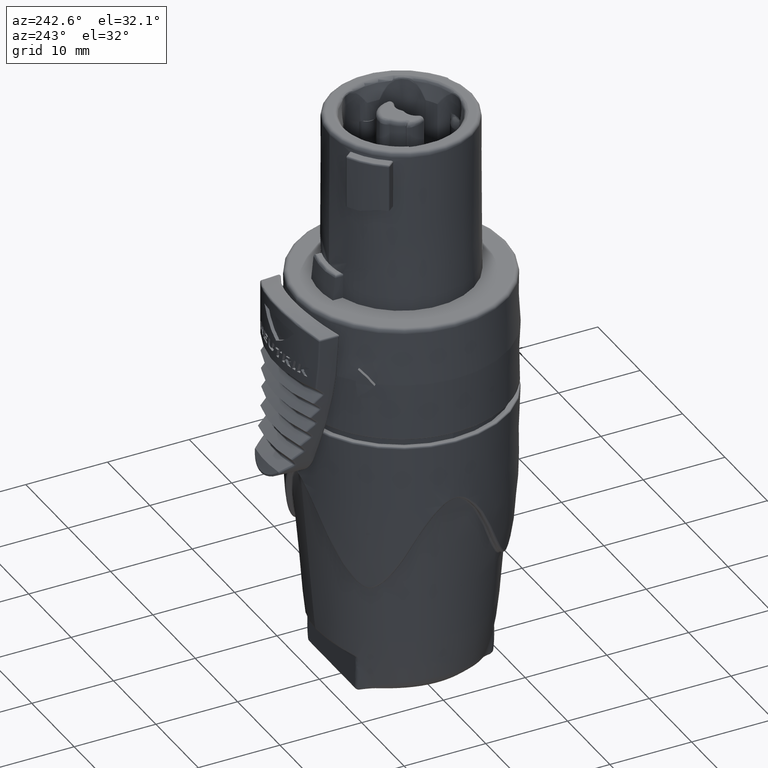
[diagram: clean part render]
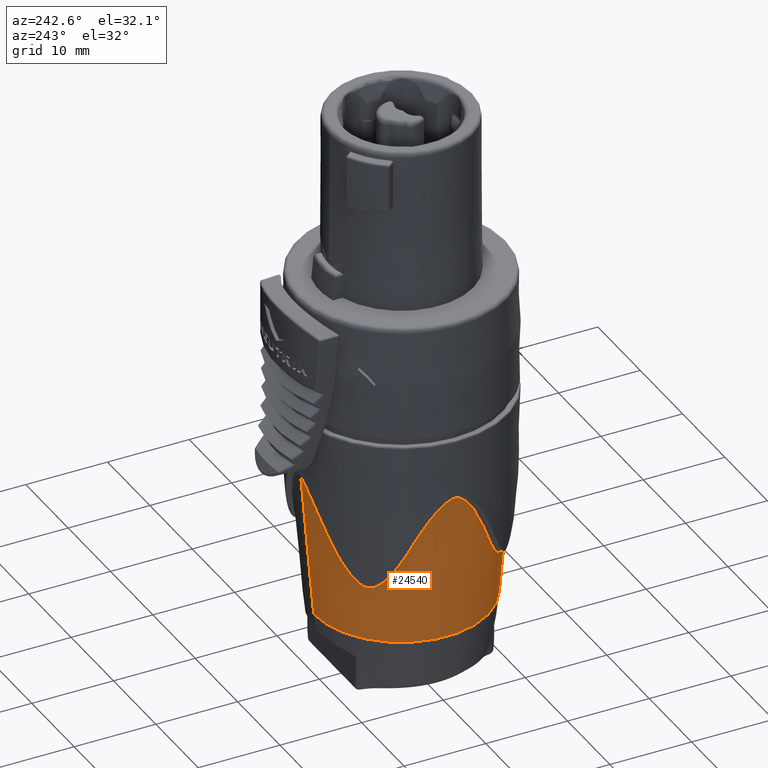
[diagram: same view with one face highlighted and labeled with its STEP entity id]
A machine part, auxiliary view. The second image highlights one B-rep face of the part: STEP entity #24540.
In plain terms, the highlighted conical surface has half-angle 5 deg.
Its self-contained STEP definition (entity closure, byte-faithful):
#5792=CARTESIAN_POINT('',(-6.953521696189E-10,-1.232786187450E1,
-1.268256979784E1));
#5793=CARTESIAN_POINT('',(-6.734028523976E-2,-1.232783220861E1,
-1.268290331387E1));
#5794=CARTESIAN_POINT('',(-2.082300753526E-1,-1.232566600840E1,
-1.269518639102E1));
#5795=CARTESIAN_POINT('',(-4.398135775673E-1,-1.231424652781E1,
-1.275734129757E1));
#5796=CARTESIAN_POINT('',(-6.856617615154E-1,-1.229349304253E1,
-1.286695215686E1));
#5797=CARTESIAN_POINT('',(-9.428148331803E-1,-1.226272240131E1,
-1.302411338250E1));
#5798=CARTESIAN_POINT('',(-1.198538145521E0,-1.222294082527E1,
-1.322130723535E1));
#5799=CARTESIAN_POINT('',(-1.424241493812E0,-1.218054322568E1,
-1.342450661295E1));
#5800=CARTESIAN_POINT('',(-1.606596653672E0,-1.214151362969E1,
-1.360736818260E1));
#5801=CARTESIAN_POINT('',(-1.763534886481E0,-1.210440572363E1,
-1.377949079007E1));
#5802=CARTESIAN_POINT('',(-1.898969079892E0,-1.206972100424E1,
-1.393869185823E1));
#5803=CARTESIAN_POINT('',(-2.016216751852E0,-1.203777808136E1,
-1.408361079903E1));
#5804=CARTESIAN_POINT('',(-2.117498575854E0,-1.200879959364E1,
-1.421343805301E1));
#5805=CARTESIAN_POINT('',(-2.205819968093E0,-1.198248709146E1,
-1.433004453437E1));
#5806=CARTESIAN_POINT('',(-2.282978543652E0,-1.195870050303E1,
-1.443448452855E1));
#5807=CARTESIAN_POINT('',(-2.351047700661E0,-1.193709212835E1,
-1.452865502007E1));
#5808=CARTESIAN_POINT('',(-2.412772521383E0,-1.191698442647E1,
-1.461576618507E1));
#5809=CARTESIAN_POINT('',(-2.470824366073E0,-1.189761283233E1,
-1.469933172081E1));
#5810=CARTESIAN_POINT('',(-2.527893467590E0,-1.187812036482E1,
-1.478316380524E1));
#5811=CARTESIAN_POINT('',(-2.586383815869E0,-1.185767004154E1,
-1.487090389637E1));
#5812=CARTESIAN_POINT('',(-2.648506080649E0,-1.183541885357E1,
-1.496616202668E1));
#5813=CARTESIAN_POINT('',(-2.716526614653E0,-1.181042561811E1,
-1.507289831067E1));
#5814=CARTESIAN_POINT('',(-2.791522703170E0,-1.178209868819E1,
-1.519346588284E1));
#5815=CARTESIAN_POINT('',(-2.870541930547E0,-1.175139157636E1,
-1.532353396988E1));
#5816=CARTESIAN_POINT('',(-2.953973338313E0,-1.171806165747E1,
-1.546379437395E1));
#5817=CARTESIAN_POINT('',(-3.045503256160E0,-1.168042878205E1,
-1.562087732778E1));
#5818=CARTESIAN_POINT('',(-3.142169125930E0,-1.163945255606E1,
-1.579033121681E1));
#5819=CARTESIAN_POINT('',(-3.240726663234E0,-1.159636973338E1,
-1.596684381241E1));
#5820=CARTESIAN_POINT('',(-3.339737717818E0,-1.155172550755E1,
-1.614819605791E1));
#5821=CARTESIAN_POINT('',(-3.438677686517E0,-1.150573462890E1,
-1.633377946412E1));
#5822=CARTESIAN_POINT('',(-3.547200271570E0,-1.145360645856E1,
-1.654316303748E1));
#5823=CARTESIAN_POINT('',(-3.663122823173E0,-1.139584540599E1,
-1.677433616981E1));
#5824=CARTESIAN_POINT('',(-3.785264860841E0,-1.133266847408E1,
-1.702619327081E1));
#5825=CARTESIAN_POINT('',(-3.916459185762E0,-1.126221534070E1,
-1.730515009969E1));
#5826=CARTESIAN_POINT('',(-4.055896959403E0,-1.118439460965E1,
-1.761039495979E1));
#5827=CARTESIAN_POINT('',(-4.203328611415E0,-1.109883329873E1,
-1.794253122960E1));
#5828=CARTESIAN_POINT('',(-4.310956484597E0,-1.103372309536E1,
-1.819243456068E1));
#5829=CARTESIAN_POINT('',(-4.366519838917E0,-1.099931029714E1,
-1.832369047051E1));
#5831=DIRECTION('',(-3.707989729365E-11,-8.715572361980E-2,9.961946997652E-1));
#5832=VECTOR('',#5831,1.875277200857E1);
#5833=CARTESIAN_POINT('',(0.E0,-1.069345046021E1,-3.136398187868E1));
#5834=LINE('',#5833,#5832);
#5835=CARTESIAN_POINT('',(0.E0,0.E0,-3.136398187868E1));
#5836=DIRECTION('',(0.E0,0.E0,1.E0));
#5837=DIRECTION('',(0.E0,1.E0,0.E0));
#5838=AXIS2_PLACEMENT_3D('',#5835,#5836,#5837);
#5840=DIRECTION('',(3.744496613579E-11,8.715572361926E-2,9.961946997653E-1));
#5841=VECTOR('',#5840,1.875277196E1);
#5842=CARTESIAN_POINT('',(0.E0,1.069345046021E1,-3.136398187868E1));
#5843=LINE('',#5842,#5841);
#5844=CARTESIAN_POINT('',(-4.365079476253E0,1.100020621900E1,
-1.832024574977E1));
#5845=CARTESIAN_POINT('',(-4.310426719291E0,1.103404404553E1,
-1.819115576040E1));
#5846=CARTESIAN_POINT('',(-4.201657699754E0,1.109993320631E1,
-1.793832865273E1));
#5847=CARTESIAN_POINT('',(-4.035566039179E0,1.119610245984E1,
-1.756478338742E1));
#5848=CARTESIAN_POINT('',(-3.880730295710E0,1.128176815340E1,
-1.722805506423E1));
#5849=CARTESIAN_POINT('',(-3.740482992624E0,1.135616684782E1,
-1.693276039880E1));
#5850=CARTESIAN_POINT('',(-3.611843667970E0,1.142171022035E1,
-1.667098616509E1));
#5851=CARTESIAN_POINT('',(-3.491438739117E0,1.148065640622E1,
-1.643460278148E1));
#5852=CARTESIAN_POINT('',(-3.384442629886E0,1.153115290428E1,
-1.623123416684E1));
#5853=CARTESIAN_POINT('',(-3.281397034061E0,1.157825497429E1,
-1.604046914415E1));
#5854=CARTESIAN_POINT('',(-3.171848989953E0,1.162671043422E1,
-1.584261897607E1));
#5855=CARTESIAN_POINT('',(-3.057381576922E0,1.167557245719E1,
-1.564105500030E1));
#5856=CARTESIAN_POINT('',(-2.944871501186E0,1.172182539529E1,
-1.544809805935E1));
#5857=CARTESIAN_POINT('',(-2.847298777093E0,1.176054739826E1,
-1.528496999052E1));
#5858=CARTESIAN_POINT('',(-2.758205936039E0,1.179479874305E1,
-1.513965924096E1));
#5859=CARTESIAN_POINT('',(-2.676337940814E0,1.182528141483E1,
-1.500967708596E1));
#5860=CARTESIAN_POINT('',(-2.603253317955E0,1.185168994982E1,
-1.489666253946E1));
#5861=CARTESIAN_POINT('',(-2.536095182129E0,1.187529693533E1,
-1.479534723267E1));
#5862=CARTESIAN_POINT('',(-2.471755464936E0,1.189732396728E1,
-1.470054167888E1));
#5863=CARTESIAN_POINT('',(-2.406958332650E0,1.191893810117E1,
-1.460720045324E1));
#5864=CARTESIAN_POINT('',(-2.337504455779E0,1.194148890485E1,
-1.450936626700E1));
#5865=CARTESIAN_POINT('',(-2.259060502962E0,1.196622086691E1,
-1.440136158123E1));
#5866=CARTESIAN_POINT('',(-2.166440063764E0,1.199442149580E1,
-1.427713150642E1));
#5867=CARTESIAN_POINT('',(-2.058941093407E0,1.202578678969E1,
-1.413743282873E1));
#5868=CARTESIAN_POINT('',(-1.936384019484E0,1.205977541238E1,
-1.398406000091E1));
#5869=CARTESIAN_POINT('',(-1.795284628630E0,1.209653753151E1,
-1.381596547299E1));
#5870=CARTESIAN_POINT('',(-1.633639531661E0,1.213537231558E1,
-1.363619189712E1));
#5871=CARTESIAN_POINT('',(-1.449528435955E0,1.217546670710E1,
-1.344851647425E1));
#5872=CARTESIAN_POINT('',(-1.222912597824E0,1.221867624180E1,
-1.324176454336E1));
#5873=CARTESIAN_POINT('',(-9.865336188127E-1,1.225628644841E1,
-1.305612845951E1));
#5874=CARTESIAN_POINT('',(-7.598461468879E-1,1.228515661938E1,
-1.290999088399E1));
#5875=CARTESIAN_POINT('',(-5.449072522192E-1,1.230599924870E1,
-1.280137208157E1));
#5876=CARTESIAN_POINT('',(-3.446882743997E-1,1.231949507894E1,
-1.272878094546E1));
#5877=CARTESIAN_POINT('',(-1.620761113522E-1,1.232656837233E1,
-1.268984166396E1));
#5878=CARTESIAN_POINT('',(-5.205499334891E-2,1.232786141769E1,
-1.268257469655E1));
#5879=CARTESIAN_POINT('',(7.021982205642E-10,1.232786187025E1,
-1.268256984623E1));
#5881=CARTESIAN_POINT('',(-8.005227812063E0,8.006156044604E0,
-2.418258336250E1));
#5882=CARTESIAN_POINT('',(-7.962584759800E0,8.048829355493E0,
-2.418231543908E1));
#5883=CARTESIAN_POINT('',(-7.874458361040E0,8.136626247265E0,
-2.417367336039E1));
#5884=CARTESIAN_POINT('',(-7.731502536795E0,8.277776012493E0,
-2.413136668072E1));
#5885=CARTESIAN_POINT('',(-7.578966747257E0,8.426740003942E0,
-2.405493416254E1));
#5886=CARTESIAN_POINT('',(-7.419066293656E0,8.580918673727E0,
-2.394250945674E1));
#5887=CARTESIAN_POINT('',(-7.253744016068E0,8.737986054994E0,
-2.379472305913E1));
#5888=CARTESIAN_POINT('',(-7.081295852270E0,8.899188013460E0,
-2.360868724386E1));
#5889=CARTESIAN_POINT('',(-6.907560559911E0,9.058351598930E0,
-2.339265527141E1));
#5890=CARTESIAN_POINT('',(-6.754567478726E0,9.195650565833E0,
-2.318143495238E1));
#5891=CARTESIAN_POINT('',(-6.627985659628E0,9.307517393501E0,
-2.299156770139E1));
#5892=CARTESIAN_POINT('',(-6.518349726013E0,9.403151550539E0,
-2.281664421749E1));
#5893=CARTESIAN_POINT('',(-6.422741902327E0,9.485461793367E0,
-2.265739755354E1));
#5894=CARTESIAN_POINT('',(-6.339581872341E0,9.556147851764E0,
-2.251490617131E1));
#5895=CARTESIAN_POINT('',(-6.266534765516E0,9.617522327741E0,
-2.238703712109E1));
#5896=CARTESIAN_POINT('',(-6.201649502829E0,9.671477433293E0,
-2.227144219820E1));
#5897=CARTESIAN_POINT('',(-6.143008284160E0,9.719794598600E0,
-2.216534385252E1));
#5898=CARTESIAN_POINT('',(-6.088491960700E0,9.764347414526E0,
-2.206525600383E1));
#5899=CARTESIAN_POINT('',(-6.035842272698E0,9.807065030240E0,
-2.196707683177E1));
#5900=CARTESIAN_POINT('',(-5.982816204445E0,9.849800042334E0,
-2.186654023538E1));
#5901=CARTESIAN_POINT('',(-5.927187618747E0,9.894331783994E0,
-2.175921810656E1));
#5902=CARTESIAN_POINT('',(-5.866869097634E0,9.942272519659E0,
-2.164074816365E1));
#5903=CARTESIAN_POINT('',(-5.799896486497E0,9.995059342929E0,
-2.150681718496E1));
#5904=CARTESIAN_POINT('',(-5.728468070530E0,1.005080426723E1,
-2.136161091243E1));
#5905=CARTESIAN_POINT('',(-5.652823826248E0,1.010918111134E1,
-2.120585672248E1));
#5906=CARTESIAN_POINT('',(-5.569306614561E0,1.017280000312E1,
-2.103204037503E1));
#5907=CARTESIAN_POINT('',(-5.480466567244E0,1.023948459499E1,
-2.084530398167E1));
#5908=CARTESIAN_POINT('',(-5.388552408091E0,1.030742188222E1,
-2.065021124185E1));
#5909=CARTESIAN_POINT('',(-5.295238087977E0,1.037534145836E1,
-2.045001149798E1));
#5910=CARTESIAN_POINT('',(-5.197725533745E0,1.044529758379E1,
-2.023798499290E1));
#5911=CARTESIAN_POINT('',(-5.088618587040E0,1.052239892618E1,
-1.999650808361E1));
#5912=CARTESIAN_POINT('',(-4.972185606236E0,1.060335061471E1,
-1.973383118225E1));
#5913=CARTESIAN_POINT('',(-4.841783895248E0,1.069232353550E1,
-1.943493257787E1));
#5914=CARTESIAN_POINT('',(-4.697484028561E0,1.078848206481E1,
-1.910051304635E1));
#5915=CARTESIAN_POINT('',(-4.541647318477E0,1.088962294136E1,
-1.873632754320E1));
#5916=CARTESIAN_POINT('',(-4.425700621553E0,1.096267312580E1,
-1.846343334584E1));
#5917=CARTESIAN_POINT('',(-4.365079476253E0,1.100020621900E1,
-1.832024574977E1));
#5919=CARTESIAN_POINT('',(-1.099930682181E1,4.366528675866E0,
-1.832369014053E1));
#5920=CARTESIAN_POINT('',(-1.095780736534E1,4.433534103242E0,
-1.848197610056E1));
#5921=CARTESIAN_POINT('',(-1.087701968140E1,4.561527294791E0,
-1.878315491285E1));
#5922=CARTESIAN_POINT('',(-1.076200094556E1,4.737751233751E0,
-1.919433288581E1));
#5923=CARTESIAN_POINT('',(-1.065868283898E1,4.891516989807E0,
-1.954944755517E1));
#5924=CARTESIAN_POINT('',(-1.056442906757E1,5.028503657521E0,
-1.986153604702E1));
#5925=CARTESIAN_POINT('',(-1.047856797376E1,5.150903518762E0,
-2.013500952048E1));
#5926=CARTESIAN_POINT('',(-1.040044730026E1,5.260416878912E0,
-2.037487202147E1));
#5927=CARTESIAN_POINT('',(-1.032886670571E1,5.359231245582E0,
-2.058783659211E1));
#5928=CARTESIAN_POINT('',(-1.025490286301E1,5.459771267644E0,
-2.080192186703E1));
#5929=CARTESIAN_POINT('',(-1.017169760037E1,5.570916318405E0,
-2.103581356864E1));
#5930=CARTESIAN_POINT('',(-1.007661168756E1,5.695468857927E0,
-2.129442411515E1));
#5931=CARTESIAN_POINT('',(-9.969283929894E0,5.833045083445E0,
-2.157429067634E1));
#5932=CARTESIAN_POINT('',(-9.865015122356E0,5.964133942547E0,
-2.183178836365E1));
#5933=CARTESIAN_POINT('',(-9.770755113423E0,6.080808562732E0,
-2.205205641147E1));
#5934=CARTESIAN_POINT('',(-9.684579157302E0,6.185910296335E0,
-2.224396901642E1));
#5935=CARTESIAN_POINT('',(-9.605963595509E0,6.280381922678E0,
-2.241210416612E1));
#5936=CARTESIAN_POINT('',(-9.534276364550E0,6.365380033890E0,
-2.255973304999E1));
#5937=CARTESIAN_POINT('',(-9.470706301374E0,6.439887674584E0,
-2.268612373375E1));
#5938=CARTESIAN_POINT('',(-9.409592993096E0,6.510815909885E0,
-2.280360520194E1));
#5939=CARTESIAN_POINT('',(-9.345307057589E0,6.584742884515E0,
-2.292253794423E1));
#5940=CARTESIAN_POINT('',(-9.274750821804E0,6.665142492308E0,
-2.304720783994E1));
#5941=CARTESIAN_POINT('',(-9.194209041914E0,6.756034606161E0,
-2.318195334767E1));
#5942=CARTESIAN_POINT('',(-9.098244099024E0,6.863156145927E0,
-2.333175770663E1));
#5943=CARTESIAN_POINT('',(-8.985173037372E0,6.987621658349E0,
-2.349396545619E1));
#5944=CARTESIAN_POINT('',(-8.854825390067E0,7.128895288427E0,
-2.366229260651E1));
#5945=CARTESIAN_POINT('',(-8.699972514883E0,7.294046293395E0,
-2.383393376170E1));
#5946=CARTESIAN_POINT('',(-8.514912579221E0,7.488209658047E0,
-2.399902034139E1));
#5947=CARTESIAN_POINT('',(-8.276721236384E0,7.733020988081E0,
-2.414277386753E1));
#5948=CARTESIAN_POINT('',(-8.099772389301E0,7.911714753078E0,
-2.418248694357E1));
#5949=CARTESIAN_POINT('',(-8.005227812063E0,8.006156044604E0,
-2.418258336250E1));
#5951=CARTESIAN_POINT('',(-1.232786095941E1,-7.055305150844E-4,
-1.268257879259E1));
#5952=CARTESIAN_POINT('',(-1.232783867130E1,6.729881937041E-2,
-1.268286819693E1));
#5953=CARTESIAN_POINT('',(-1.232563805759E1,2.106352540754E-1,
-1.269534798543E1));
#5954=CARTESIAN_POINT('',(-1.231379661196E1,4.476488209718E-1,
-1.275978008450E1));
#5955=CARTESIAN_POINT('',(-1.229196367131E1,7.013156237582E-1,
-1.287492659935E1));
#5956=CARTESIAN_POINT('',(-1.225953894219E1,9.666054308223E-1,
-1.304020428313E1));
#5957=CARTESIAN_POINT('',(-1.221653117012E1,1.236328087004E0,
-1.325263544233E1));
#5958=CARTESIAN_POINT('',(-1.216956838302E1,1.479030088339E0,
-1.347642649629E1));
#5959=CARTESIAN_POINT('',(-1.212348322227E1,1.685734571613E0,
-1.369130004242E1));
#5960=CARTESIAN_POINT('',(-1.208008145525E1,1.860189573930E0,
-1.389146320910E1));
#5961=CARTESIAN_POINT('',(-1.203929962679E1,2.011514398583E0,
-1.407697584233E1));
#5962=CARTESIAN_POINT('',(-1.199774840063E1,2.155745867621E0,
-1.426282135666E1));
#5963=CARTESIAN_POINT('',(-1.195968436547E1,2.280345094590E0,
-1.443035356038E1));
#5964=CARTESIAN_POINT('',(-1.192600735096E1,2.385704856697E0,
-1.457685142538E1));
#5965=CARTESIAN_POINT('',(-1.189230598366E1,2.486980157739E0,
-1.472225124842E1));
#5966=CARTESIAN_POINT('',(-1.185656119272E1,2.590032709379E0,
-1.487571397737E1));
#5967=CARTESIAN_POINT('',(-1.181674826804E1,2.700020464455E0,
-1.504600567366E1));
#5968=CARTESIAN_POINT('',(-1.177184940699E1,2.818679788381E0,
-1.523711716788E1));
#5969=CARTESIAN_POINT('',(-1.172166431557E1,2.945607123862E0,
-1.544893633250E1));
#5970=CARTESIAN_POINT('',(-1.166697321005E1,3.077974931925E0,
-1.567690405459E1));
#5971=CARTESIAN_POINT('',(-1.161446465968E1,3.199864892901E0,
-1.589297465011E1));
#5972=CARTESIAN_POINT('',(-1.156693613988E1,3.306387488970E0,
-1.608657051329E1));
#5973=CARTESIAN_POINT('',(-1.152017788677E1,3.407958884629E0,
-1.627559938046E1));
#5974=CARTESIAN_POINT('',(-1.146923059800E1,3.515110421E0,-1.648048471398E1));
#5975=CARTESIAN_POINT('',(-1.141085451127E1,3.633472250906E0,
-1.671433937800E1));
#5976=CARTESIAN_POINT('',(-1.134673799041E1,3.758529077243E0,
-1.697022968633E1));
#5977=CARTESIAN_POINT('',(-1.127408326104E1,3.894802395301E0,
-1.725836505880E1));
#5978=CARTESIAN_POINT('',(-1.119320509799E1,4.040478682441E0,
-1.757603482775E1));
#5979=CARTESIAN_POINT('',(-1.110393598654E1,4.194819554159E0,
-1.792288344498E1));
#5980=CARTESIAN_POINT('',(-1.103554443332E1,4.308019088607E0,
-1.818547418861E1));
#5981=CARTESIAN_POINT('',(-1.099930682181E1,4.366528675866E0,
-1.832369014053E1));
#5983=CARTESIAN_POINT('',(-1.100020265874E1,-4.365088453885E0,
-1.832024574999E1));
#5984=CARTESIAN_POINT('',(-1.103882745023E1,-4.302704286929E0,
-1.817289362159E1));
#5985=CARTESIAN_POINT('',(-1.111191253027E1,-4.181560091944E0,
-1.789214444355E1));
#5986=CARTESIAN_POINT('',(-1.121046019414E1,-4.010130957194E0,
-1.750861782595E1));
#5987=CARTESIAN_POINT('',(-1.129534943545E1,-3.855585502175E0,
-1.717434174616E1));
#5988=CARTESIAN_POINT('',(-1.136936204602E1,-3.715020664440E0,
-1.688015130529E1));
#5989=CARTESIAN_POINT('',(-1.143358126299E1,-3.587963830765E0,
-1.662344097245E1));
#5990=CARTESIAN_POINT('',(-1.149059188927E1,-3.470665649570E0,
-1.639464763304E1));
#5991=CARTESIAN_POINT('',(-1.153958304198E1,-3.366226548330E0,
-1.619716805126E1));
#5992=CARTESIAN_POINT('',(-1.158585146661E1,-3.264433816712E0,
-1.600954153554E1));
#5993=CARTESIAN_POINT('',(-1.163314417392E1,-3.157018250388E0,
-1.581619232642E1));
#5994=CARTESIAN_POINT('',(-1.168479336965E1,-3.035484957998E0,
-1.560285307552E1));
#5995=CARTESIAN_POINT('',(-1.174098744336E1,-2.897638056113E0,
-1.536782043114E1));
#5996=CARTESIAN_POINT('',(-1.179948006516E1,-2.746810257211E0,
-1.511996969288E1));
#5997=CARTESIAN_POINT('',(-1.185427061356E1,-2.597078056445E0,
-1.488574805801E1));
#5998=CARTESIAN_POINT('',(-1.190128016560E1,-2.460863209839E0,
-1.468363937716E1));
#5999=CARTESIAN_POINT('',(-1.194107086223E1,-2.339375353198E0,
-1.451135510362E1));
#6000=CARTESIAN_POINT('',(-1.197748494141E1,-2.222906564542E0,
-1.435202122824E1));
#6001=CARTESIAN_POINT('',(-1.201489730360E1,-2.097245888245E0,
-1.418625934785E1));
#6002=CARTESIAN_POINT('',(-1.205457879598E1,-1.956034006574E0,
-1.400776231179E1));
#6003=CARTESIAN_POINT('',(-1.209593663780E1,-1.798115910266E0,
-1.381879512127E1));
#6004=CARTESIAN_POINT('',(-1.213947307899E1,-1.616691077327E0,
-1.361722978318E1));
#6005=CARTESIAN_POINT('',(-1.218620250861E1,-1.397465357918E0,
-1.339784501840E1));
#6006=CARTESIAN_POINT('',(-1.223026934556E1,-1.154963844859E0,
-1.318513512516E1));
#6007=CARTESIAN_POINT('',(-1.226424138366E1,-9.283139352294E-1,
-1.301611434984E1));
#6008=CARTESIAN_POINT('',(-1.228956891974E1,-7.181727202461E-1,
-1.288721271567E1));
#6009=CARTESIAN_POINT('',(-1.230815184327E1,-5.167575778159E-1,
-1.278988382512E1));
#6010=CARTESIAN_POINT('',(-1.232027883701E1,-3.278911142882E-1,
-1.272447925179E1));
#6011=CARTESIAN_POINT('',(-1.232668095655E1,-1.544764737486E-1,
-1.268920555012E1));
#6012=CARTESIAN_POINT('',(-1.232785492105E1,-5.026333561931E-2,
-1.268261803113E1));
#6013=CARTESIAN_POINT('',(-1.232786095941E1,-7.055305150844E-4,
-1.268257879259E1));
#6015=CARTESIAN_POINT('',(-8.006210842997E0,-8.005167105738E0,
-2.418258434176E1));
#6016=CARTESIAN_POINT('',(-8.102904865939E0,-7.908642707977E0,
-2.418179865403E1));
#6017=CARTESIAN_POINT('',(-8.293642342309E0,-7.716202762382E0,
-2.414248646039E1));
#6018=CARTESIAN_POINT('',(-8.603534279176E0,-7.396387313591E0,
-2.393614454867E1));
#6019=CARTESIAN_POINT('',(-8.845648234566E0,-7.139253398218E0,
-2.367767183675E1));
#6020=CARTESIAN_POINT('',(-9.033457388651E0,-6.935137624406E0,
-2.342943480326E1));
#6021=CARTESIAN_POINT('',(-9.190598240118E0,-6.760363126022E0,
-2.319076139414E1));
#6022=CARTESIAN_POINT('',(-9.322314163489E0,-6.611223007473E0,
-2.296617773166E1));
#6023=CARTESIAN_POINT('',(-9.432993830491E0,-6.483937757615E0,
-2.276044386028E1));
#6024=CARTESIAN_POINT('',(-9.530747550850E0,-6.369715370823E0,
-2.256733951619E1));
#6025=CARTESIAN_POINT('',(-9.618007432816E0,-6.266073101697E0,
-2.238655812322E1));
#6026=CARTESIAN_POINT('',(-9.691761811113E0,-6.177170901657E0,
-2.222756148614E1));
#6027=CARTESIAN_POINT('',(-9.753653633994E0,-6.101670246947E0,
-2.208977484707E1));
#6028=CARTESIAN_POINT('',(-9.811579094715E0,-6.030309196650E0,
-2.195688691053E1));
#6029=CARTESIAN_POINT('',(-9.870063247854E0,-5.957605583990E0,
-2.181838812040E1));
#6030=CARTESIAN_POINT('',(-9.932768669329E0,-5.878930034004E0,
-2.166487833174E1));
#6031=CARTESIAN_POINT('',(-1.000074471331E1,-5.792713977549E0,
-2.149251691840E1));
#6032=CARTESIAN_POINT('',(-1.007036223467E1,-5.703307645342E0,
-2.131014816871E1));
#6033=CARTESIAN_POINT('',(-1.014610173582E1,-5.604611656582E0,
-2.110587976035E1));
#6034=CARTESIAN_POINT('',(-1.022731229854E1,-5.496878220701E0,
-2.088003817844E1));
#6035=CARTESIAN_POINT('',(-1.030306355740E1,-5.394526374989E0,
-2.066298299877E1));
#6036=CARTESIAN_POINT('',(-1.037319299057E1,-5.298213558392E0,
-2.045641519083E1));
#6037=CARTESIAN_POINT('',(-1.044229673855E1,-5.201939274328E0,
-2.024719793794E1));
#6038=CARTESIAN_POINT('',(-1.051999111610E1,-5.092061236677E0,
-2.000419710823E1));
#6039=CARTESIAN_POINT('',(-1.060130136173E1,-4.975164616809E0,
-1.974059653381E1));
#6040=CARTESIAN_POINT('',(-1.069066840475E1,-4.844245622219E0,
-1.944059712067E1));
#6041=CARTESIAN_POINT('',(-1.078723882230E1,-4.699380587583E0,
-1.910491004175E1));
#6042=CARTESIAN_POINT('',(-1.088865935156E1,-4.543165064390E0,
-1.873987168342E1));
#6043=CARTESIAN_POINT('',(-1.096231573057E1,-4.426280977908E0,
-1.846478303718E1));
#6044=CARTESIAN_POINT('',(-1.100020265874E1,-4.365088453885E0,
-1.832024574999E1));
#6046=CARTESIAN_POINT('',(-4.366519838917E0,-1.099931029714E1,
-1.832369047051E1));
#6047=CARTESIAN_POINT('',(-4.432009541245E0,-1.095874967460E1,
-1.847839571060E1));
#6048=CARTESIAN_POINT('',(-4.557256773032E0,-1.087973086982E1,
-1.877314001493E1));
#6049=CARTESIAN_POINT('',(-4.730208277289E0,-1.076697266602E1,
-1.917680672254E1));
#6050=CARTESIAN_POINT('',(-4.881565590441E0,-1.066543110633E1,
-1.952657936380E1));
#6051=CARTESIAN_POINT('',(-5.016716957150E0,-1.057260111438E1,
-1.983488300327E1));
#6052=CARTESIAN_POINT('',(-5.137537672712E0,-1.048800654418E1,
-2.010540744871E1));
#6053=CARTESIAN_POINT('',(-5.246321541731E0,-1.041055791730E1,
-2.034422389631E1));
#6054=CARTESIAN_POINT('',(-5.342835899549E0,-1.034081287361E1,
-2.055270175322E1));
#6055=CARTESIAN_POINT('',(-5.443070560566E0,-1.026726740978E1,
-2.076653731674E1));
#6056=CARTESIAN_POINT('',(-5.546812808887E0,-1.018982886840E1,
-2.098527822125E1));
#6057=CARTESIAN_POINT('',(-5.649805714506E0,-1.011155519278E1,
-2.119978948219E1));
#6058=CARTESIAN_POINT('',(-5.738896330564E0,-1.004275097684E1,
-2.138289406361E1));
#6059=CARTESIAN_POINT('',(-5.818963434505E0,-9.980131554444E0,
-2.154500941125E1));
#6060=CARTESIAN_POINT('',(-5.892162050542E0,-9.922261888468E0,
-2.169049365860E1));
#6061=CARTESIAN_POINT('',(-5.957274958041E0,-9.870316974863E0,
-2.181738506953E1));
#6062=CARTESIAN_POINT('',(-6.017275200646E0,-9.822075041325E0,
-2.193209825552E1));
#6063=CARTESIAN_POINT('',(-6.074995550919E0,-9.775319887547E0,
-2.204044177592E1));
#6064=CARTESIAN_POINT('',(-6.133551315792E0,-9.727526162362E0,
-2.214842881257E1));
#6065=CARTESIAN_POINT('',(-6.195671158018E0,-9.676393295386E0,
-2.226113042369E1));
#6066=CARTESIAN_POINT('',(-6.265459976927E0,-9.618396088204E0,
-2.238562058390E1));
#6067=CARTESIAN_POINT('',(-6.342622150470E0,-9.553538680782E0,
-2.252049219955E1));
#6068=CARTESIAN_POINT('',(-6.415888226039E0,-9.491245132663E0,
-2.264570918377E1));
#6069=CARTESIAN_POINT('',(-6.484825635355E0,-9.432044845479E0,
-2.276088126575E1));
#6070=CARTESIAN_POINT('',(-6.553686692617E0,-9.372371632266E0,
-2.287299297314E1));
#6071=CARTESIAN_POINT('',(-6.626106758309E0,-9.309074529523E0,
-2.298721589152E1));
#6072=CARTESIAN_POINT('',(-6.705796384988E0,-9.238809265216E0,
-2.310819180293E1));
#6073=CARTESIAN_POINT('',(-6.797547075232E0,-9.157138196783E0,
-2.324100781317E1));
#6074=CARTESIAN_POINT('',(-6.905562434356E0,-9.059881719376E0,
-2.338825719854E1));
#6075=CARTESIAN_POINT('',(-7.027822544937E0,-8.948257428916E0,
-2.354332343077E1));
#6076=CARTESIAN_POINT('',(-7.167140574517E0,-8.819146455664E0,
-2.370424388391E1));
#6077=CARTESIAN_POINT('',(-7.329529515905E0,-8.666347631366E0,
-2.386647113118E1));
#6078=CARTESIAN_POINT('',(-7.507515603793E0,-8.496041746545E0,
-2.400964974518E1));
#6079=CARTESIAN_POINT('',(-7.685978540471E0,-8.322501870578E0,
-2.411380114680E1));
#6080=CARTESIAN_POINT('',(-7.855876694683E0,-8.155070405320E0,
-2.417199180311E1));
#6081=CARTESIAN_POINT('',(-7.957723002289E0,-8.053658759861E0,
-2.418262193845E1));
#6082=CARTESIAN_POINT('',(-8.006210842997E0,-8.005167105738E0,
-2.418258434176E1));
#6264=CARTESIAN_POINT('',(-6.953521696189E-10,-1.232786187450E1,
-1.268256979784E1));
#11292=CARTESIAN_POINT('',(0.E0,1.069345046021E1,-3.136398187868E1));
#11293=CARTESIAN_POINT('',(0.E0,-1.069345046021E1,-3.136398187868E1));
#11294=VERTEX_POINT('',#11292);
#11295=VERTEX_POINT('',#11293);
#11399=VERTEX_POINT('',#6264);
#11401=VERTEX_POINT('',#5829);
#11403=VERTEX_POINT('',#6082);
#11405=VERTEX_POINT('',#6044);
#11407=VERTEX_POINT('',#6013);
#11409=VERTEX_POINT('',#5981);
#11411=VERTEX_POINT('',#5949);
#11413=VERTEX_POINT('',#5917);
#11415=VERTEX_POINT('',#5879);
#24517=CARTESIAN_POINT('',(0.E0,0.E0,-2.202327536521E1));
#24518=DIRECTION('',(0.E0,0.E0,1.E0));
#24519=DIRECTION('',(0.E0,1.E0,0.E0));
#24520=AXIS2_PLACEMENT_3D('',#24517,#24518,#24519);
#24521=CONICAL_SURFACE('',#24520,1.151065638946E1,5.E0);
#24522=ORIENTED_EDGE('',*,*,#21234,.F.);
#24524=ORIENTED_EDGE('',*,*,#24523,.F.);
#24526=ORIENTED_EDGE('',*,*,#24525,.F.);
#24528=ORIENTED_EDGE('',*,*,#24527,.T.);
#24529=ORIENTED_EDGE('',*,*,#23149,.F.);
#24530=ORIENTED_EDGE('',*,*,#23307,.F.);
#24531=ORIENTED_EDGE('',*,*,#23442,.F.);
#24533=ORIENTED_EDGE('',*,*,#24532,.F.);
#24535=ORIENTED_EDGE('',*,*,#24534,.F.);
#24536=ORIENTED_EDGE('',*,*,#24510,.F.);
#24537=ORIENTED_EDGE('',*,*,#21071,.F.);
#24538=EDGE_LOOP('',(#24522,#24524,#24526,#24528,#24529,#24530,#24531,#24533,
#24535,#24536,#24537));
#24539=FACE_OUTER_BOUND('',#24538,.F.);
#24540=ADVANCED_FACE('',(#24539),#24521,.T.);
#5830=B_SPLINE_CURVE_WITH_KNOTS('',3,(#5792,#5793,#5794,#5795,#5796,#5797,#5798,
#5799,#5800,#5801,#5802,#5803,#5804,#5805,#5806,#5807,#5808,#5809,#5810,#5811,
#5812,#5813,#5814,#5815,#5816,#5817,#5818,#5819,#5820,#5821,#5822,#5823,#5824,
#5825,#5826,#5827,#5828,#5829),.UNSPECIFIED.,.F.,.F.,(4,1,1,1,1,1,1,1,1,1,1,1,1,
1,1,1,1,1,1,1,1,1,1,1,1,1,1,1,1,1,1,1,1,1,1,4),(0.E0,2.857142857143E-2,
5.714285714286E-2,8.571428571429E-2,1.142857142857E-1,1.428571428571E-1,
1.714285714286E-1,2.E-1,2.285714285714E-1,2.571428571429E-1,2.857142857143E-1,
3.142857142857E-1,3.428571428571E-1,3.714285714286E-1,4.E-1,4.285714285714E-1,
4.571428571429E-1,4.857142857143E-1,5.142857142857E-1,5.428571428571E-1,
5.714285714286E-1,6.E-1,6.285714285714E-1,6.571428571429E-1,6.857142857143E-1,
7.142857142857E-1,7.428571428571E-1,7.714285714286E-1,8.E-1,8.285714285714E-1,
8.571428571429E-1,8.857142857143E-1,9.142857142857E-1,9.428571428571E-1,
9.714285714286E-1,1.E0),.UNSPECIFIED.);
#5839=CIRCLE('',#5838,1.069345046021E1);
#5880=B_SPLINE_CURVE_WITH_KNOTS('',3,(#5844,#5845,#5846,#5847,#5848,#5849,#5850,
#5851,#5852,#5853,#5854,#5855,#5856,#5857,#5858,#5859,#5860,#5861,#5862,#5863,
#5864,#5865,#5866,#5867,#5868,#5869,#5870,#5871,#5872,#5873,#5874,#5875,#5876,
#5877,#5878,#5879),.UNSPECIFIED.,.F.,.F.,(4,1,1,1,1,1,1,1,1,1,1,1,1,1,1,1,1,1,1,
1,1,1,1,1,1,1,1,1,1,1,1,1,1,4),(0.E0,3.030303030303E-2,6.060606060606E-2,
9.090909090909E-2,1.212121212121E-1,1.515151515152E-1,1.818181818182E-1,
2.121212121212E-1,2.424242424242E-1,2.727272727273E-1,3.030303030303E-1,
3.333333333333E-1,3.636363636364E-1,3.939393939394E-1,4.242424242424E-1,
4.545454545455E-1,4.848484848485E-1,5.151515151515E-1,5.454545454545E-1,
5.757575757576E-1,6.060606060606E-1,6.363636363636E-1,6.666666666667E-1,
6.969696969697E-1,7.272727272727E-1,7.575757575758E-1,7.878787878788E-1,
8.181818181818E-1,8.484848484848E-1,8.787878787879E-1,9.090909090909E-1,
9.393939393939E-1,9.696969696970E-1,1.E0),.UNSPECIFIED.);
#5918=B_SPLINE_CURVE_WITH_KNOTS('',3,(#5881,#5882,#5883,#5884,#5885,#5886,#5887,
#5888,#5889,#5890,#5891,#5892,#5893,#5894,#5895,#5896,#5897,#5898,#5899,#5900,
#5901,#5902,#5903,#5904,#5905,#5906,#5907,#5908,#5909,#5910,#5911,#5912,#5913,
#5914,#5915,#5916,#5917),.UNSPECIFIED.,.F.,.F.,(4,1,1,1,1,1,1,1,1,1,1,1,1,1,1,1,
1,1,1,1,1,1,1,1,1,1,1,1,1,1,1,1,1,1,4),(0.E0,2.941176470588E-2,
5.882352941176E-2,8.823529411765E-2,1.176470588235E-1,1.470588235294E-1,
1.764705882353E-1,2.058823529412E-1,2.352941176471E-1,2.647058823529E-1,
2.941176470588E-1,3.235294117647E-1,3.529411764706E-1,3.823529411765E-1,
4.117647058824E-1,4.411764705882E-1,4.705882352941E-1,5.E-1,5.294117647059E-1,
5.588235294118E-1,5.882352941176E-1,6.176470588235E-1,6.470588235294E-1,
6.764705882353E-1,7.058823529412E-1,7.352941176471E-1,7.647058823529E-1,
7.941176470588E-1,8.235294117647E-1,8.529411764706E-1,8.823529411765E-1,
9.117647058824E-1,9.411764705882E-1,9.705882352941E-1,1.E0),.UNSPECIFIED.);
#5950=B_SPLINE_CURVE_WITH_KNOTS('',3,(#5919,#5920,#5921,#5922,#5923,#5924,#5925,
#5926,#5927,#5928,#5929,#5930,#5931,#5932,#5933,#5934,#5935,#5936,#5937,#5938,
#5939,#5940,#5941,#5942,#5943,#5944,#5945,#5946,#5947,#5948,#5949),
.UNSPECIFIED.,.F.,.F.,(4,1,1,1,1,1,1,1,1,1,1,1,1,1,1,1,1,1,1,1,1,1,1,1,1,1,1,1,
4),(0.E0,3.571428571429E-2,7.142857142857E-2,1.071428571429E-1,
1.428571428571E-1,1.785714285714E-1,2.142857142857E-1,2.5E-1,2.857142857143E-1,
3.214285714286E-1,3.571428571429E-1,3.928571428571E-1,4.285714285714E-1,
4.642857142857E-1,5.E-1,5.357142857143E-1,5.714285714286E-1,6.071428571429E-1,
6.428571428571E-1,6.785714285714E-1,7.142857142857E-1,7.5E-1,7.857142857143E-1,
8.214285714286E-1,8.571428571429E-1,8.928571428571E-1,9.285714285714E-1,
9.642857142857E-1,1.E0),.UNSPECIFIED.);
#5982=B_SPLINE_CURVE_WITH_KNOTS('',3,(#5951,#5952,#5953,#5954,#5955,#5956,#5957,
#5958,#5959,#5960,#5961,#5962,#5963,#5964,#5965,#5966,#5967,#5968,#5969,#5970,
#5971,#5972,#5973,#5974,#5975,#5976,#5977,#5978,#5979,#5980,#5981),
.UNSPECIFIED.,.F.,.F.,(4,1,1,1,1,1,1,1,1,1,1,1,1,1,1,1,1,1,1,1,1,1,1,1,1,1,1,1,
4),(0.E0,3.571428571429E-2,7.142857142857E-2,1.071428571429E-1,
1.428571428571E-1,1.785714285714E-1,2.142857142857E-1,2.5E-1,2.857142857143E-1,
3.214285714286E-1,3.571428571429E-1,3.928571428571E-1,4.285714285714E-1,
4.642857142857E-1,5.E-1,5.357142857143E-1,5.714285714286E-1,6.071428571429E-1,
6.428571428571E-1,6.785714285714E-1,7.142857142857E-1,7.5E-1,7.857142857143E-1,
8.214285714286E-1,8.571428571429E-1,8.928571428571E-1,9.285714285714E-1,
9.642857142857E-1,1.E0),.UNSPECIFIED.);
#6014=B_SPLINE_CURVE_WITH_KNOTS('',3,(#5983,#5984,#5985,#5986,#5987,#5988,#5989,
#5990,#5991,#5992,#5993,#5994,#5995,#5996,#5997,#5998,#5999,#6000,#6001,#6002,
#6003,#6004,#6005,#6006,#6007,#6008,#6009,#6010,#6011,#6012,#6013),
.UNSPECIFIED.,.F.,.F.,(4,1,1,1,1,1,1,1,1,1,1,1,1,1,1,1,1,1,1,1,1,1,1,1,1,1,1,1,
4),(0.E0,3.571428571429E-2,7.142857142857E-2,1.071428571429E-1,
1.428571428571E-1,1.785714285714E-1,2.142857142857E-1,2.5E-1,2.857142857143E-1,
3.214285714286E-1,3.571428571429E-1,3.928571428571E-1,4.285714285714E-1,
4.642857142857E-1,5.E-1,5.357142857143E-1,5.714285714286E-1,6.071428571429E-1,
6.428571428571E-1,6.785714285714E-1,7.142857142857E-1,7.5E-1,7.857142857143E-1,
8.214285714286E-1,8.571428571429E-1,8.928571428571E-1,9.285714285714E-1,
9.642857142857E-1,1.E0),.UNSPECIFIED.);
#6045=B_SPLINE_CURVE_WITH_KNOTS('',3,(#6015,#6016,#6017,#6018,#6019,#6020,#6021,
#6022,#6023,#6024,#6025,#6026,#6027,#6028,#6029,#6030,#6031,#6032,#6033,#6034,
#6035,#6036,#6037,#6038,#6039,#6040,#6041,#6042,#6043,#6044),.UNSPECIFIED.,.F.,
.F.,(4,1,1,1,1,1,1,1,1,1,1,1,1,1,1,1,1,1,1,1,1,1,1,1,1,1,1,4),(0.E0,
3.703703703704E-2,7.407407407407E-2,1.111111111111E-1,1.481481481481E-1,
1.851851851852E-1,2.222222222222E-1,2.592592592593E-1,2.962962962963E-1,
3.333333333333E-1,3.703703703704E-1,4.074074074074E-1,4.444444444444E-1,
4.814814814815E-1,5.185185185185E-1,5.555555555556E-1,5.925925925926E-1,
6.296296296296E-1,6.666666666667E-1,7.037037037037E-1,7.407407407407E-1,
7.777777777778E-1,8.148148148148E-1,8.518518518519E-1,8.888888888889E-1,
9.259259259259E-1,9.629629629630E-1,1.E0),.UNSPECIFIED.);
#6083=B_SPLINE_CURVE_WITH_KNOTS('',3,(#6046,#6047,#6048,#6049,#6050,#6051,#6052,
#6053,#6054,#6055,#6056,#6057,#6058,#6059,#6060,#6061,#6062,#6063,#6064,#6065,
#6066,#6067,#6068,#6069,#6070,#6071,#6072,#6073,#6074,#6075,#6076,#6077,#6078,
#6079,#6080,#6081,#6082),.UNSPECIFIED.,.F.,.F.,(4,1,1,1,1,1,1,1,1,1,1,1,1,1,1,1,
1,1,1,1,1,1,1,1,1,1,1,1,1,1,1,1,1,1,4),(0.E0,2.941176470588E-2,
5.882352941176E-2,8.823529411765E-2,1.176470588235E-1,1.470588235294E-1,
1.764705882353E-1,2.058823529412E-1,2.352941176471E-1,2.647058823529E-1,
2.941176470588E-1,3.235294117647E-1,3.529411764706E-1,3.823529411765E-1,
4.117647058824E-1,4.411764705882E-1,4.705882352941E-1,5.E-1,5.294117647059E-1,
5.588235294118E-1,5.882352941176E-1,6.176470588235E-1,6.470588235294E-1,
6.764705882353E-1,7.058823529412E-1,7.352941176471E-1,7.647058823529E-1,
7.941176470588E-1,8.235294117647E-1,8.529411764706E-1,8.823529411765E-1,
9.117647058824E-1,9.411764705882E-1,9.705882352941E-1,1.E0),.UNSPECIFIED.);
#21071=EDGE_CURVE('',#11401,#11403,#6083,.T.);
#21234=EDGE_CURVE('',#11399,#11401,#5830,.T.);
#23149=EDGE_CURVE('',#11413,#11415,#5880,.T.);
#23307=EDGE_CURVE('',#11411,#11413,#5918,.T.);
#23442=EDGE_CURVE('',#11409,#11411,#5950,.T.);
#24510=EDGE_CURVE('',#11403,#11405,#6045,.T.);
#24523=EDGE_CURVE('',#11295,#11399,#5834,.T.);
#24525=EDGE_CURVE('',#11294,#11295,#5839,.T.);
#24527=EDGE_CURVE('',#11294,#11415,#5843,.T.);
#24532=EDGE_CURVE('',#11407,#11409,#5982,.T.);
#24534=EDGE_CURVE('',#11405,#11407,#6014,.T.);